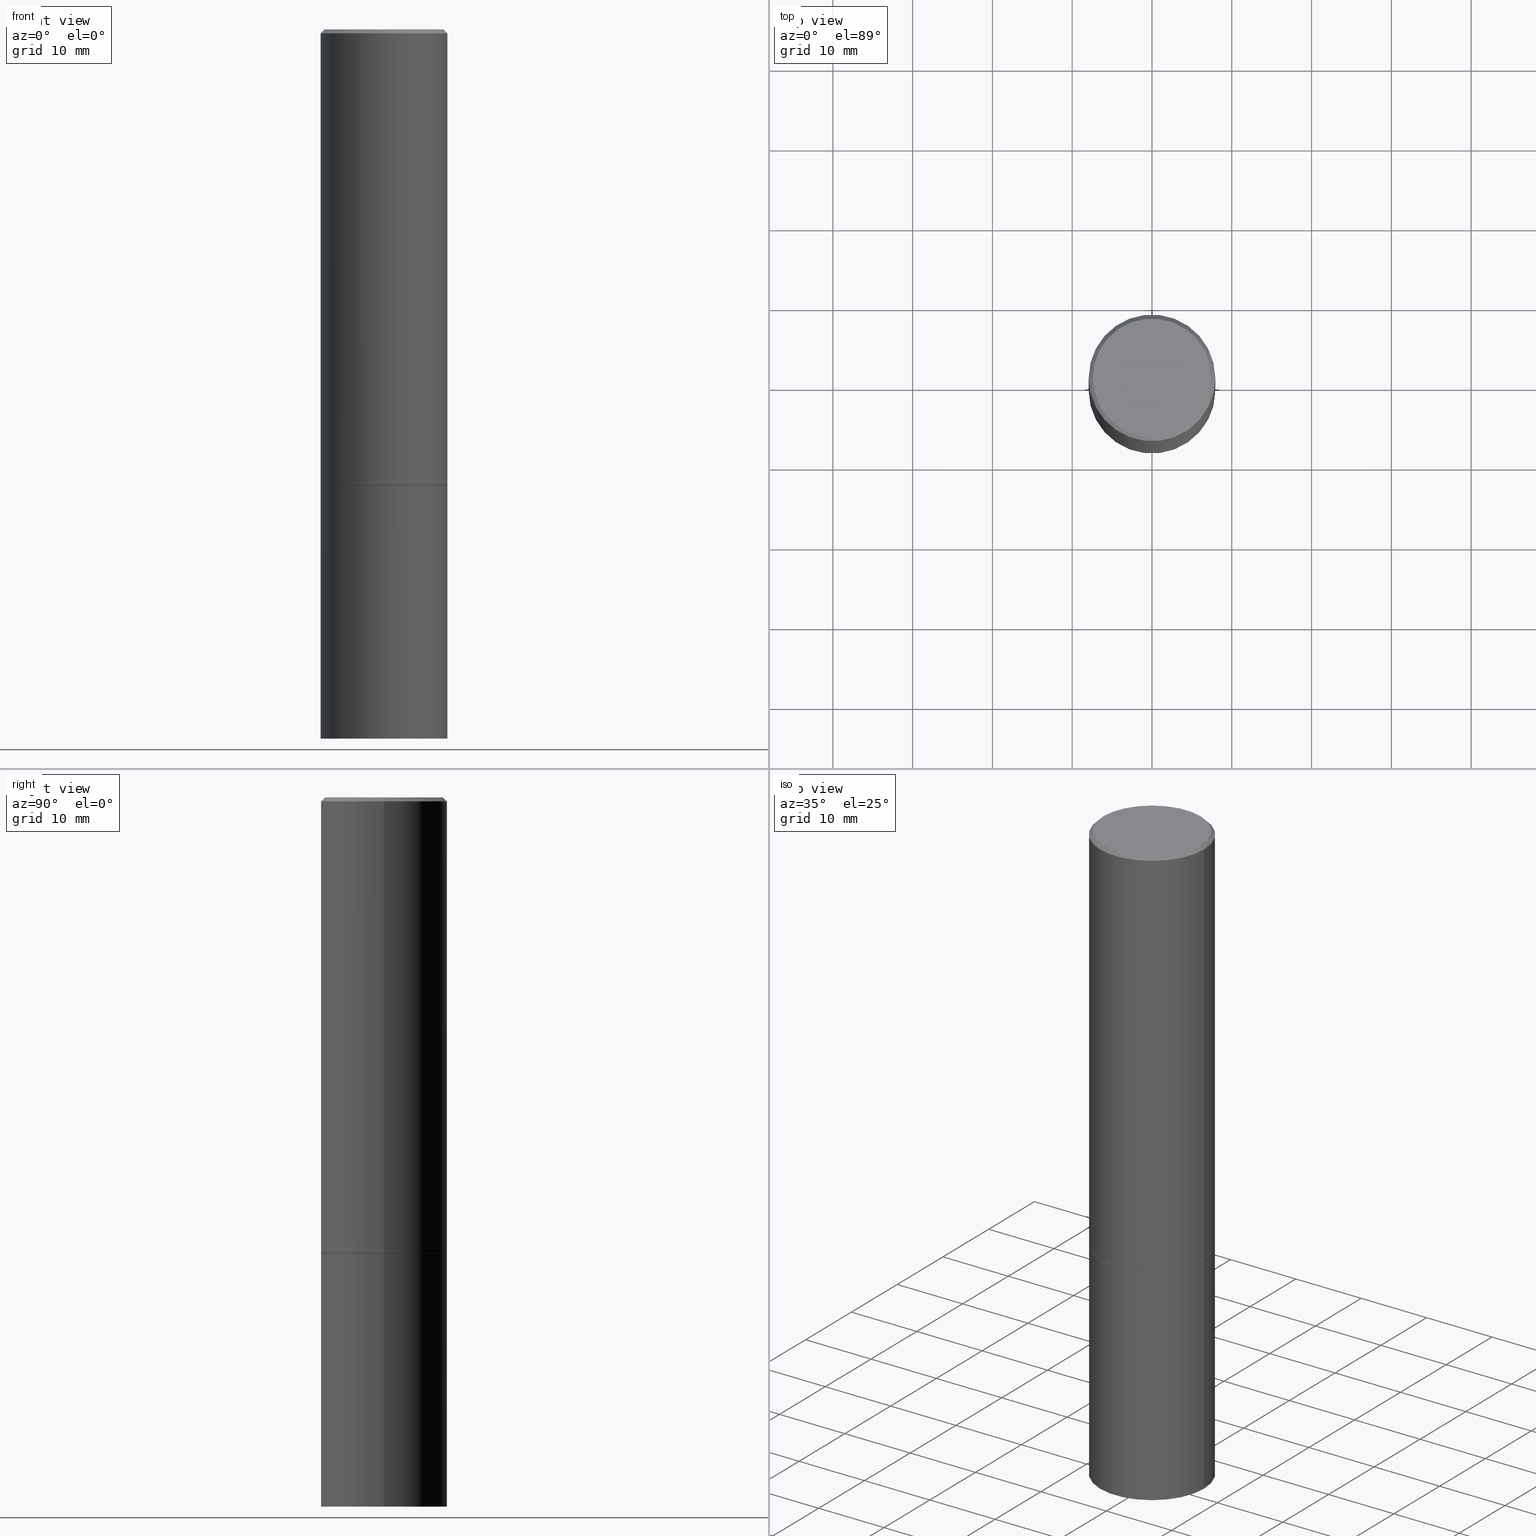
[diagram: canonical four-view strip — front | top / right | iso, engineering-drawing reading convention]
A machine part, canonical four-view strip (front | top / right | iso — engineering-drawing reading convention). The complete STEP part file that produces these views, byte-faithful:
ISO-10303-21;
HEADER;
FILE_DESCRIPTION (( 'STEP AP203' ),
    '1' );
FILE_NAME ('35313.STEP',
    '2024-02-27T18:39:55',
    ( '' ),
    ( '' ),
    'SwSTEP 2.0',
    'SolidWorks 2023',
    '' );
FILE_SCHEMA (( 'CONFIG_CONTROL_DESIGN' ));
ENDSEC;

DATA;
#1 = DESIGN_CONTEXT ( 'detailed design', #98, 'design' ) ;
#2 = DIRECTION ( 'NONE',  ( -1.000000000000000000, 6.982962677686265922E-15, -4.876176775795935793E-29 ) ) ;
#3 = DIRECTION ( 'NONE',  ( 2.438088387897960049E-29, -3.491481338843145188E-15, -1.000000000000000000 ) ) ;
#4 = AXIS2_PLACEMENT_3D ( 'NONE', #120, #284, #31 ) ;
#5 = PERSON_AND_ORGANIZATION ( #75, #242 ) ;
#6 = CARTESIAN_POINT ( 'NONE',  ( 0.3114999999999999991, -1.003102588649635078E-14, -2.250000000000000000 ) ) ;
#7 = LINE ( 'NONE', #247, #264 ) ;
#8 = EDGE_CURVE ( 'NONE', #302, #254, #138, .T. ) ;
#9 = AXIS2_PLACEMENT_3D ( 'NONE', #94, #308, #363 ) ;
#10 = ORIENTED_EDGE ( 'NONE', *, *, #39, .T. ) ;
#11 = ORIENTED_EDGE ( 'NONE', *, *, #285, .T. ) ;
#12 = ORIENTED_EDGE ( 'NONE', *, *, #36, .T. ) ;
#13 = APPROVAL_PERSON_ORGANIZATION ( #258, #55, #365 ) ;
#14 = ORIENTED_EDGE ( 'NONE', *, *, #39, .F. ) ;
#15 = ORIENTED_EDGE ( 'NONE', *, *, #102, .T. ) ;
#16 = DIRECTION ( 'NONE',  ( 1.000000000000000000, -6.982962677686269077E-15, 0.000000000000000000 ) ) ;
#17 = CIRCLE ( 'NONE', #48, 0.3125000000000000000 ) ;
#18 = EDGE_LOOP ( 'NONE', ( #190, #14 ) ) ;
#19 = DIRECTION ( 'NONE',  ( 1.000000000000000000, 0.000000000000000000, 0.000000000000000000 ) ) ;
#20 = DIRECTION ( 'NONE',  ( -2.445468806185136597E-29, 3.491481338843145583E-15, 1.000000000000000000 ) ) ;
#21 = DIRECTION ( 'NONE',  ( -2.438088387897960049E-29, 3.491481338843145188E-15, 1.000000000000000000 ) ) ;
#22 = ADVANCED_FACE ( 'NONE', ( #119 ), #143, .T. ) ;
#23 = APPROVAL_STATUS ( 'not_yet_approved' ) ;
#24 = APPROVAL_ROLE ( '' ) ;
#25 = CIRCLE ( 'NONE', #166, 0.3114999999999999991 ) ;
#26 = ORIENTED_EDGE ( 'NONE', *, *, #134, .F. ) ;
#27 = EDGE_CURVE ( 'NONE', #254, #223, #178, .T. ) ;
#28 = PERSON_AND_ORGANIZATION ( #75, #242 ) ;
#29 = DIRECTION ( 'NONE',  ( 2.438088387897960049E-29, -3.491481338843145188E-15, -1.000000000000000000 ) ) ;
#30 = ADVANCED_BREP_SHAPE_REPRESENTATION ( '35313', ( #37, #42, #316 ), #304 ) ;
#31 = DIRECTION ( 'NONE',  ( -1.000000000000000000, 6.982962677686265922E-15, -4.876176775795935793E-29 ) ) ;
#32 = CARTESIAN_POINT ( 'NONE',  ( 5.502304813916557343E-29, -7.855833012397078448E-15, -2.250000000000000000 ) ) ;
#33 = CARTESIAN_POINT ( 'NONE',  ( -0.3124999999999997224, 2.112346210000093471E-15, -0.02000000000000007674 ) ) ;
#34 = ADVANCED_FACE ( 'NONE', ( #306 ), #339, .T. ) ;
#35 = CONICAL_SURFACE ( 'NONE', #291, 0.3124999999999997224, 0.7853981633974471688 ) ;
#36 = EDGE_CURVE ( 'NONE', #286, #223, #86, .T. ) ;
#37 = MANIFOLD_SOLID_BREP ( 'Body-Move/Copy2[1]', #106 ) ;
#38 = LINE ( 'NONE', #124, #346 ) ;
#39 = EDGE_CURVE ( 'NONE', #71, #72, #327, .T. ) ;
#40 = AXIS2_PLACEMENT_3D ( 'NONE', #331, #193, #170 ) ;
#41 = EDGE_CURVE ( 'NONE', #191, #205, #17, .T. ) ;
#42 = MANIFOLD_SOLID_BREP ( 'Body-Move/Copy2[2]', #90 ) ;
#43 = EDGE_LOOP ( 'NONE', ( #253, #15 ) ) ;
#44 = ORIENTED_EDGE ( 'NONE', *, *, #274, .T. ) ;
#45 = ORIENTED_EDGE ( 'NONE', *, *, #97, .T. ) ;
#46 = AXIS2_PLACEMENT_3D ( 'NONE', #288, #21, #263 ) ;
#47 = DIRECTION ( 'NONE',  ( 1.000000000000000000, -6.982962677686269077E-15, 0.000000000000000000 ) ) ;
#48 = AXIS2_PLACEMENT_3D ( 'NONE', #140, #146, #332 ) ;
#49 = DIRECTION ( 'NONE',  ( 1.000000000000000000, -6.982962677686266711E-15, 4.876176775795936353E-29 ) ) ;
#50 = LOCAL_TIME ( 13, 39, 55.00000000000000000, #195 ) ;
#51 = DIRECTION ( 'NONE',  ( 1.000000000000000000, -6.982962677686265133E-15, 0.000000000000000000 ) ) ;
#52 = COORDINATED_UNIVERSAL_TIME_OFFSET ( 5, 0, .BEHIND. ) ;
#53 = FACE_OUTER_BOUND ( 'NONE', #132, .T. ) ;
#54 = DIRECTION ( 'NONE',  ( -2.445468806185136597E-29, 3.491481338843145583E-15, 1.000000000000000000 ) ) ;
#55 = APPROVAL ( #282, 'UNSPECIFIED' ) ;
#56 = PRODUCT ( '35313', '35313', '', ( #115 ) ) ;
#57 = EDGE_LOOP ( 'NONE', ( #321, #324, #347, #238 ) ) ;
#58 = DIRECTION ( 'NONE',  ( -2.445468806185136597E-29, 3.491481338843145583E-15, 1.000000000000000000 ) ) ;
#59 = APPLICATION_CONTEXT ( 'configuration controlled 3d designs of mechanical parts and assemblies' ) ;
#60 = DIRECTION ( 'NONE',  ( -2.445468806185136597E-29, 3.491481338843145583E-15, 1.000000000000000000 ) ) ;
#61 = EDGE_CURVE ( 'NONE', #286, #302, #241, .T. ) ;
#62 = CARTESIAN_POINT ( 'NONE',  ( 0.3124999999999997224, -2.213735251080464939E-15, -0.02000000000000007674 ) ) ;
#63 = DIRECTION ( 'NONE',  ( -2.445468806185136597E-29, 3.491481338843145583E-15, 1.000000000000000000 ) ) ;
#64 = DATE_TIME_ROLE ( 'creation_date' ) ;
#65 = CARTESIAN_POINT ( 'NONE',  ( 2.042516583223230567E-15, 0.2924999999999997047, -1.021258291611619228E-15 ) ) ;
#66 = CARTESIAN_POINT ( 'NONE',  ( 0.3125000000000000000, -1.003800884917403522E-14, -2.249999999999999556 ) ) ;
#67 = CONICAL_SURFACE ( 'NONE', #40, 0.3114999999999999991, 0.7853981633972775267 ) ;
#68 = FACE_OUTER_BOUND ( 'NONE', #103, .T. ) ;
#69 = EDGE_CURVE ( 'NONE', #71, #205, #200, .T. ) ;
#70 = CC_DESIGN_APPROVAL ( #212, ( #104 ) ) ;
#71 = VERTEX_POINT ( 'NONE', #114 ) ;
#72 = VERTEX_POINT ( 'NONE', #313 ) ;
#73 = UNCERTAINTY_MEASURE_WITH_UNIT (LENGTH_MEASURE( 1.000000000000000082E-05 ), #340, 'distance_accuracy_value', 'NONE');
#74 = EDGE_LOOP ( 'NONE', ( #277, #10, #250, #305 ) ) ;
#75 = PERSON ( 'UNSPECIFIED', 'UNSPECIFIED', 'UNSPECIFIED', ('UNSPECIFIED'), ('UNSPECIFIED'), ('UNSPECIFIED') ) ;
#76 = VECTOR ( 'NONE', #318, 39.37007874015748143 ) ;
#77 = FACE_OUTER_BOUND ( 'NONE', #221, .T. ) ;
#78 = CARTESIAN_POINT ( 'NONE',  ( -0.3125000000000000000, -1.740639529667233725E-15, -2.248999999999999666 ) ) ;
#79 = CARTESIAN_POINT ( 'NONE',  ( 5.499859345110371740E-29, -7.852341531058233864E-15, -2.248999999999999666 ) ) ;
#80 = PERSON_AND_ORGANIZATION_ROLE ( 'creator' ) ;
#81 = DIRECTION ( 'NONE',  ( -2.445468806185136597E-29, 3.491481338843145583E-15, 1.000000000000000000 ) ) ;
#82 = CC_DESIGN_PERSON_AND_ORGANIZATION_ASSIGNMENT ( #139, #80, ( #272 ) ) ;
#83 = DIRECTION ( 'NONE',  ( -2.445468806185136597E-29, 3.491481338843145583E-15, 1.000000000000000000 ) ) ;
#84 = APPROVAL_DATE_TIME ( #169, #55 ) ;
#85 = DIMENSIONAL_EXPONENTS ( 1.000000000000000000, 0.000000000000000000, 0.000000000000000000, 0.000000000000000000, 0.000000000000000000, 0.000000000000000000, 0.000000000000000000 ) ;
#86 = LINE ( 'NONE', #361, #300 ) ;
#87 = DATE_AND_TIME ( #144, #297 ) ;
#88 = CARTESIAN_POINT ( 'NONE',  ( 0.3124999999999998890, -2.182175836776957558E-15, 1.523805242436229235E-29 ) ) ;
#89 = DATE_AND_TIME ( #337, #50 ) ;
#90 = CLOSED_SHELL ( 'NONE', ( #22, #34, #95, #216, #245, #334, #155, #186 ) ) ;
#91 = FACE_OUTER_BOUND ( 'NONE', #192, .T. ) ;
#92 = CC_DESIGN_PERSON_AND_ORGANIZATION_ASSIGNMENT ( #198, #172, ( #56 ) ) ;
#93 = CARTESIAN_POINT ( 'NONE',  ( 4.890937612370292426E-31, -6.982962677686317493E-17, -0.02000000000000007674 ) ) ;
#94 = CARTESIAN_POINT ( 'NONE',  ( 4.890937612370292426E-31, -6.982962677686317493E-17, -0.02000000000000007674 ) ) ;
#95 = ADVANCED_FACE ( 'NONE', ( #231 ), #35, .T. ) ;
#96 = FACE_OUTER_BOUND ( 'NONE', #18, .T. ) ;
#97 = EDGE_CURVE ( 'NONE', #72, #71, #345, .T. ) ;
#98 = APPLICATION_CONTEXT ( 'configuration controlled 3d designs of mechanical parts and assemblies' ) ;
#99 = AXIS2_PLACEMENT_3D ( 'NONE', #142, #54, #135 ) ;
#100 = VERTEX_POINT ( 'NONE', #257 ) ;
#101 = ORIENTED_EDGE ( 'NONE', *, *, #211, .T. ) ;
#102 = EDGE_CURVE ( 'NONE', #205, #191, #323, .T. ) ;
#103 = EDGE_LOOP ( 'NONE', ( #101, #279 ) ) ;
#104 = PRODUCT_DEFINITION ( 'UNKNOWN', '', #272, #1 ) ;
#105 = ORIENTED_EDGE ( 'NONE', *, *, #164, .F. ) ;
#106 = CLOSED_SHELL ( 'NONE', ( #294, #237, #333, #159 ) ) ;
#107 = CARTESIAN_POINT ( 'NONE',  ( 5.502304813916557343E-29, -7.855833012397078448E-15, -2.250000000000000000 ) ) ;
#108 = CALENDAR_DATE ( 2024, 27, 2 ) ;
#109 = CARTESIAN_POINT ( 'NONE',  ( 0.2924999999999997047, -2.110215457714317959E-15, 1.452077414963940261E-29 ) ) ;
#110 = DIRECTION ( 'NONE',  ( 1.000000000000000000, -6.982962677686266711E-15, 4.876176775795935232E-29 ) ) ;
#111 = APPROVAL_DATE_TIME ( #362, #153 ) ;
#112 = CARTESIAN_POINT ( 'NONE',  ( 0.3125000000000000000, -1.003451736783519063E-14, -2.248999999999999666 ) ) ;
#113 = CC_DESIGN_PERSON_AND_ORGANIZATION_ASSIGNMENT ( #292, #147, ( #104 ) ) ;
#114 = CARTESIAN_POINT ( 'NONE',  ( -0.3125000000000000000, -7.817562799923730025E-15, -3.500000000000000000 ) ) ;
#115 = MECHANICAL_CONTEXT ( 'NONE', #59, 'mechanical' ) ;
#116 = VECTOR ( 'NONE', #311, 39.37007874015748143 ) ;
#117 = ORIENTED_EDGE ( 'NONE', *, *, #69, .T. ) ;
#118 = FACE_OUTER_BOUND ( 'NONE', #43, .T. ) ;
#119 = FACE_OUTER_BOUND ( 'NONE', #350, .T. ) ;
#120 = CARTESIAN_POINT ( 'NONE',  ( 2.182175836777013173E-15, 0.3124999999999921729, -2.250000000000000888 ) ) ;
#121 = DIRECTION ( 'NONE',  ( -2.445468806185136597E-29, 3.491481338843145583E-15, 1.000000000000000000 ) ) ;
#122 = LOCAL_TIME ( 13, 39, 55.00000000000000000, #203 ) ;
#123 = CARTESIAN_POINT ( 'NONE',  ( 5.499859345110371740E-29, -7.852341531058233864E-15, -2.248999999999999666 ) ) ;
#124 = CARTESIAN_POINT ( 'NONE',  ( 0.3114999999999999991, -1.003102588649635078E-14, -2.250000000000000000 ) ) ;
#125 = CC_DESIGN_PERSON_AND_ORGANIZATION_ASSIGNMENT ( #167, #307, ( #272 ) ) ;
#126 = PLANE ( 'NONE',  #127 ) ;
#127 = AXIS2_PLACEMENT_3D ( 'NONE', #65, #29, #295 ) ;
#128 = ORIENTED_EDGE ( 'NONE', *, *, #41, .F. ) ;
#129 = ORIENTED_EDGE ( 'NONE', *, *, #27, .T. ) ;
#130 = AXIS2_PLACEMENT_3D ( 'NONE', #358, #81, #49 ) ;
#131 = ORIENTED_EDGE ( 'NONE', *, *, #218, .F. ) ;
#132 = EDGE_LOOP ( 'NONE', ( #45, #117, #128, #251 ) ) ;
#133 = ORIENTED_EDGE ( 'NONE', *, *, #134, .T. ) ;
#134 = EDGE_CURVE ( 'NONE', #194, #158, #25, .T. ) ;
#135 = DIRECTION ( 'NONE',  ( 1.000000000000000000, -6.982962677686269077E-15, 0.000000000000000000 ) ) ;
#136 = AXIS2_PLACEMENT_3D ( 'NONE', #173, #20, #16 ) ;
#137 = PERSON_AND_ORGANIZATION_ROLE ( 'classification_officer' ) ;
#138 = LINE ( 'NONE', #88, #252 ) ;
#139 = PERSON_AND_ORGANIZATION ( #75, #242 ) ;
#140 = CARTESIAN_POINT ( 'NONE',  ( 5.502304813916556222E-29, -7.855833012397076871E-15, -2.249999999999999556 ) ) ;
#141 = DIRECTION ( 'NONE',  ( 0.000000000000000000, 0.000000000000000000, 1.000000000000000000 ) ) ;
#142 = CARTESIAN_POINT ( 'NONE',  ( 8.559140821647976968E-29, -1.222018468595100934E-14, -3.500000000000000000 ) ) ;
#143 = CONICAL_SURFACE ( 'NONE', #352, 0.3114999999999999991, 0.7853981633972775267 ) ;
#144 = CALENDAR_DATE ( 2024, 27, 2 ) ;
#145 = AXIS2_PLACEMENT_3D ( 'NONE', #201, #58, #156 ) ;
#146 = DIRECTION ( 'NONE',  ( -2.445468806185136597E-29, 3.491481338843145583E-15, 1.000000000000000000 ) ) ;
#147 = PERSON_AND_ORGANIZATION_ROLE ( 'creator' ) ;
#148 = CARTESIAN_POINT ( 'NONE',  ( -0.3125000000000000000, -7.817562799923730025E-15, -2.249999999999999556 ) ) ;
#149 = LINE ( 'NONE', #62, #116 ) ;
#150 = DIRECTION ( 'NONE',  ( -2.445468806185136597E-29, 3.491481338843145583E-15, 1.000000000000000000 ) ) ;
#151 = CONICAL_SURFACE ( 'NONE', #189, 0.3124999999999997224, 0.7853981633974471688 ) ;
#152 = DIRECTION ( 'NONE',  ( 1.000000000000000000, -6.982962677686266711E-15, 4.876176775795936353E-29 ) ) ;
#153 = APPROVAL ( #23, 'UNSPECIFIED' ) ;
#154 = DIRECTION ( 'NONE',  ( 1.000000000000000000, -6.982962677686269077E-15, 0.000000000000000000 ) ) ;
#155 = ADVANCED_FACE ( 'NONE', ( #77 ), #312, .F. ) ;
#156 = DIRECTION ( 'NONE',  ( 1.000000000000000000, -6.982962677686266711E-15, 4.876176775795936353E-29 ) ) ;
#157 = CC_DESIGN_SECURITY_CLASSIFICATION ( #179, ( #272 ) ) ;
#158 = VERTEX_POINT ( 'NONE', #298 ) ;
#159 = ADVANCED_FACE ( 'NONE', ( #182 ), #287, .T. ) ;
#160 = ORIENTED_EDGE ( 'NONE', *, *, #244, .F. ) ;
#161 = AXIS2_PLACEMENT_3D ( 'NONE', #296, #3, #2 ) ;
#162 = CC_DESIGN_PERSON_AND_ORGANIZATION_ASSIGNMENT ( #268, #137, ( #179 ) ) ;
#163 = ORIENTED_EDGE ( 'NONE', *, *, #199, .F. ) ;
#164 = EDGE_CURVE ( 'NONE', #158, #286, #210, .T. ) ;
#165 = CARTESIAN_POINT ( 'NONE',  ( 4.890937612370292426E-31, -6.982962677686317493E-17, -0.02000000000000007674 ) ) ;
#166 = AXIS2_PLACEMENT_3D ( 'NONE', #107, #225, #330 ) ;
#167 = PERSON_AND_ORGANIZATION ( #75, #242 ) ;
#168 = ORIENTED_EDGE ( 'NONE', *, *, #222, .F. ) ;
#169 = DATE_AND_TIME ( #206, #278 ) ;
#170 = DIRECTION ( 'NONE',  ( 1.000000000000000000, -6.982962677686269077E-15, 0.000000000000000000 ) ) ;
#171 = DIRECTION ( 'NONE',  ( -2.445468806185136877E-29, 3.491481338843145188E-15, 1.000000000000000000 ) ) ;
#172 = PERSON_AND_ORGANIZATION_ROLE ( 'design_owner' ) ;
#173 = CARTESIAN_POINT ( 'NONE',  ( 8.559140821647976968E-29, -1.222018468595100934E-14, -3.500000000000000000 ) ) ;
#174 = APPROVAL_DATE_TIME ( #87, #212 ) ;
#175 = CIRCLE ( 'NONE', #309, 0.3125000000000000000 ) ;
#176 = DIRECTION ( 'NONE',  ( 1.000000000000000000, -6.982962677686266711E-15, 4.876176775795935232E-29 ) ) ;
#177 = PLANE ( 'NONE',  #161 ) ;
#178 = CIRCLE ( 'NONE', #232, 0.3124999999999997224 ) ;
#179 = SECURITY_CLASSIFICATION ( '', '', #239 ) ;
#180 = CARTESIAN_POINT ( 'NONE',  ( 0.000000000000000000, 0.000000000000000000, 0.000000000000000000 ) ) ;
#181 = DIRECTION ( 'NONE',  ( -2.445468806185136597E-29, 3.491481338843145583E-15, 1.000000000000000000 ) ) ;
#182 = FACE_OUTER_BOUND ( 'NONE', #74, .T. ) ;
#183 = AXIS2_PLACEMENT_3D ( 'NONE', #364, #357, #110 ) ;
#184 = AXIS2_PLACEMENT_3D ( 'NONE', #180, #150, #342 ) ;
#185 = ORIENTED_EDGE ( 'NONE', *, *, #211, .F. ) ;
#186 = ADVANCED_FACE ( 'NONE', ( #68 ), #126, .F. ) ;
#187 = CC_DESIGN_DATE_AND_TIME_ASSIGNMENT ( #293, #64, ( #104 ) ) ;
#188 = EDGE_LOOP ( 'NONE', ( #44, #12, #276, #349 ) ) ;
#189 = AXIS2_PLACEMENT_3D ( 'NONE', #93, #209, #213 ) ;
#190 = ORIENTED_EDGE ( 'NONE', *, *, #97, .F. ) ;
#191 = VERTEX_POINT ( 'NONE', #66 ) ;
#192 = EDGE_LOOP ( 'NONE', ( #303, #185, #229, #11 ) ) ;
#193 = DIRECTION ( 'NONE',  ( -2.445468806185136597E-29, 3.491481338843145583E-15, 1.000000000000000000 ) ) ;
#194 = VERTEX_POINT ( 'NONE', #6 ) ;
#195 = COORDINATED_UNIVERSAL_TIME_OFFSET ( 5, 0, .BEHIND. ) ;
#196 =( NAMED_UNIT ( * ) SI_UNIT ( $, .STERADIAN. ) SOLID_ANGLE_UNIT ( ) );
#197 = DIRECTION ( 'NONE',  ( 1.000000000000000000, -6.982962677686266711E-15, 0.000000000000000000 ) ) ;
#198 = PERSON_AND_ORGANIZATION ( #75, #242 ) ;
#199 = EDGE_CURVE ( 'NONE', #158, #194, #319, .T. ) ;
#200 = LINE ( 'NONE', #261, #219 ) ;
#201 = CARTESIAN_POINT ( 'NONE',  ( 0.000000000000000000, 0.000000000000000000, 0.000000000000000000 ) ) ;
#202 = CC_DESIGN_DATE_AND_TIME_ASSIGNMENT ( #89, #234, ( #179 ) ) ;
#203 = COORDINATED_UNIVERSAL_TIME_OFFSET ( 5, 0, .BEHIND. ) ;
#204 = CARTESIAN_POINT ( 'NONE',  ( 0.000000000000000000, 0.000000000000000000, 0.000000000000000000 ) ) ;
#205 = VERTEX_POINT ( 'NONE', #148 ) ;
#206 = CALENDAR_DATE ( 2024, 27, 2 ) ;
#207 = COORDINATED_UNIVERSAL_TIME_OFFSET ( 5, 0, .BEHIND. ) ;
#208 = AXIS2_PLACEMENT_3D ( 'NONE', #317, #63, #176 ) ;
#209 = DIRECTION ( 'NONE',  ( 2.445468806185136597E-29, -3.491481338843145583E-15, -1.000000000000000000 ) ) ;
#210 = LINE ( 'NONE', #320, #76 ) ;
#211 = EDGE_CURVE ( 'NONE', #100, #351, #256, .T. ) ;
#212 = APPROVAL ( #289, 'UNSPECIFIED' ) ;
#213 = DIRECTION ( 'NONE',  ( -1.000000000000000000, 6.982962677686266711E-15, 0.000000000000000000 ) ) ;
#214 = AXIS2_PLACEMENT_3D ( 'NONE', #267, #83, #47 ) ;
#215 = CARTESIAN_POINT ( 'NONE',  ( 0.000000000000000000, 0.000000000000000000, 0.000000000000000000 ) ) ;
#216 = ADVANCED_FACE ( 'NONE', ( #91 ), #151, .T. ) ;
#217 = ORIENTED_EDGE ( 'NONE', *, *, #61, .F. ) ;
#218 = EDGE_CURVE ( 'NONE', #100, #223, #299, .T. ) ;
#219 = VECTOR ( 'NONE', #359, 39.37007874015748143 ) ;
#220 = CC_DESIGN_APPROVAL ( #153, ( #272 ) ) ;
#221 = EDGE_LOOP ( 'NONE', ( #26, #163 ) ) ;
#222 = EDGE_CURVE ( 'NONE', #194, #302, #38, .T. ) ;
#223 = VERTEX_POINT ( 'NONE', #270 ) ;
#224 = EDGE_LOOP ( 'NONE', ( #105, #235, #255, #217 ) ) ;
#225 = DIRECTION ( 'NONE',  ( -2.445468806185136597E-29, 3.491481338843145583E-15, 1.000000000000000000 ) ) ;
#226 = EDGE_CURVE ( 'NONE', #72, #191, #7, .T. ) ;
#227 = LENGTH_MEASURE_WITH_UNIT ( LENGTH_MEASURE( 0.02539999999999999897 ), #230 );
#228 = PRODUCT_DEFINITION_SHAPE ( 'NONE', 'NONE',  #104 ) ;
#229 = ORIENTED_EDGE ( 'NONE', *, *, #218, .T. ) ;
#230 =( LENGTH_UNIT ( ) NAMED_UNIT ( * ) SI_UNIT ( $, .METRE. ) );
#231 = FACE_OUTER_BOUND ( 'NONE', #280, .T. ) ;
#232 = AXIS2_PLACEMENT_3D ( 'NONE', #165, #310, #197 ) ;
#233 = VECTOR ( 'NONE', #344, 39.37007874015748143 ) ;
#234 = DATE_TIME_ROLE ( 'classification_date' ) ;
#235 = ORIENTED_EDGE ( 'NONE', *, *, #199, .T. ) ;
#236 = FACE_OUTER_BOUND ( 'NONE', #224, .T. ) ;
#237 = ADVANCED_FACE ( 'NONE', ( #96 ), #177, .T. ) ;
#238 = ORIENTED_EDGE ( 'NONE', *, *, #285, .F. ) ;
#239 = SECURITY_CLASSIFICATION_LEVEL ( 'unclassified' ) ;
#240 = DIRECTION ( 'NONE',  ( -2.445468806185136877E-29, 3.491481338843145188E-15, 1.000000000000000000 ) ) ;
#241 = CIRCLE ( 'NONE', #322, 0.3125000000000000000 ) ;
#242 = ORGANIZATION ( 'UNSPECIFIED', 'UNSPECIFIED', '' ) ;
#243 = DIRECTION ( 'NONE',  ( -2.445468806185136597E-29, 3.491481338843145583E-15, 1.000000000000000000 ) ) ;
#244 = EDGE_CURVE ( 'NONE', #351, #100, #275, .T. ) ;
#245 = ADVANCED_FACE ( 'NONE', ( #341 ), #271, .T. ) ;
#246 = DIRECTION ( 'NONE',  ( 0.7071067811864267805, -2.468850131080992517E-15, 0.7071067811866682540 ) ) ;
#247 = CARTESIAN_POINT ( 'NONE',  ( 0.3125000000000000000, -2.182175836776958347E-15, 1.523805242436230075E-29 ) ) ;
#248 = AXIS2_PLACEMENT_3D ( 'NONE', #32, #181, #154 ) ;
#249 = PRODUCT_RELATED_PRODUCT_CATEGORY ( 'detail', '', ( #56 ) ) ;
#250 = ORIENTED_EDGE ( 'NONE', *, *, #226, .T. ) ;
#251 = ORIENTED_EDGE ( 'NONE', *, *, #226, .F. ) ;
#252 = VECTOR ( 'NONE', #281, 39.37007874015748143 ) ;
#253 = ORIENTED_EDGE ( 'NONE', *, *, #41, .T. ) ;
#254 = VERTEX_POINT ( 'NONE', #343 ) ;
#255 = ORIENTED_EDGE ( 'NONE', *, *, #222, .T. ) ;
#256 = CIRCLE ( 'NONE', #184, 0.2924999999999997047 ) ;
#257 = CARTESIAN_POINT ( 'NONE',  ( -0.2924999999999997047, 2.077431396611662216E-15, -1.440630921208798820E-29 ) ) ;
#258 = PERSON_AND_ORGANIZATION ( #75, #242 ) ;
#259 = CARTESIAN_POINT ( 'NONE',  ( 5.502304813916557343E-29, -7.855833012397078448E-15, -2.250000000000000000 ) ) ;
#260 =( NAMED_UNIT ( * ) PLANE_ANGLE_UNIT ( ) SI_UNIT ( $, .RADIAN. ) );
#261 = CARTESIAN_POINT ( 'NONE',  ( -0.3125000000000000000, 2.220446049250313081E-15, -1.537167215704658232E-29 ) ) ;
#262 = PLANE ( 'NONE',  #4 ) ;
#263 = DIRECTION ( 'NONE',  ( 1.000000000000000000, -6.982962677686265922E-15, 4.876176775795935793E-29 ) ) ;
#264 = VECTOR ( 'NONE', #240, 39.37007874015748143 ) ;
#265 = APPROVAL_ROLE ( '' ) ;
#266 = APPLICATION_PROTOCOL_DEFINITION ( 'international standard', 'config_control_design', 1994, #98 ) ;
#267 = CARTESIAN_POINT ( 'NONE',  ( 5.502304813916556222E-29, -7.855833012397076871E-15, -2.249999999999999556 ) ) ;
#268 = PERSON_AND_ORGANIZATION ( #75, #242 ) ;
#269 = COORDINATED_UNIVERSAL_TIME_OFFSET ( 5, 0, .BEHIND. ) ;
#270 = CARTESIAN_POINT ( 'NONE',  ( -0.3124999999999997224, 2.112346210000093471E-15, -0.02000000000000007674 ) ) ;
#271 = CYLINDRICAL_SURFACE ( 'NONE', #208, 0.3124999999999998890 ) ;
#272 = PRODUCT_DEFINITION_FORMATION_WITH_SPECIFIED_SOURCE ( 'ANY', '', #56, .NOT_KNOWN. ) ;
#273 = DIRECTION ( 'NONE',  ( 1.000000000000000000, -6.982962677686265133E-15, 0.000000000000000000 ) ) ;
#274 = EDGE_CURVE ( 'NONE', #302, #286, #175, .T. ) ;
#275 = CIRCLE ( 'NONE', #328, 0.2924999999999997047 ) ;
#276 = ORIENTED_EDGE ( 'NONE', *, *, #27, .F. ) ;
#277 = ORIENTED_EDGE ( 'NONE', *, *, #69, .F. ) ;
#278 = LOCAL_TIME ( 13, 39, 55.00000000000000000, #52 ) ;
#279 = ORIENTED_EDGE ( 'NONE', *, *, #244, .T. ) ;
#280 = EDGE_LOOP ( 'NONE', ( #160, #326, #129, #131 ) ) ;
#281 = DIRECTION ( 'NONE',  ( -2.445468806185136877E-29, 3.491481338843145188E-15, 1.000000000000000000 ) ) ;
#282 = APPROVAL_STATUS ( 'not_yet_approved' ) ;
#283 = LOCAL_TIME ( 13, 39, 55.00000000000000000, #269 ) ;
#284 = DIRECTION ( 'NONE',  ( 2.438088387897960049E-29, -3.491481338843145188E-15, -1.000000000000000000 ) ) ;
#285 = EDGE_CURVE ( 'NONE', #223, #254, #348, .T. ) ;
#286 = VERTEX_POINT ( 'NONE', #78 ) ;
#287 = CYLINDRICAL_SURFACE ( 'NONE', #145, 0.3125000000000000000 ) ;
#288 = CARTESIAN_POINT ( 'NONE',  ( 5.502304813916556222E-29, -7.855833012397076871E-15, -2.249999999999999556 ) ) ;
#289 = APPROVAL_STATUS ( 'not_yet_approved' ) ;
#290 = DIRECTION ( 'NONE',  ( 2.445468806185136597E-29, -3.491481338843145583E-15, -1.000000000000000000 ) ) ;
#291 = AXIS2_PLACEMENT_3D ( 'NONE', #315, #290, #336 ) ;
#292 = PERSON_AND_ORGANIZATION ( #75, #242 ) ;
#293 = DATE_AND_TIME ( #366, #283 ) ;
#294 = ADVANCED_FACE ( 'NONE', ( #53 ), #356, .T. ) ;
#295 = DIRECTION ( 'NONE',  ( -1.000000000000000000, 6.982962677686265922E-15, -4.876176775795935793E-29 ) ) ;
#296 = CARTESIAN_POINT ( 'NONE',  ( 2.182175836777043938E-15, 0.3124999999999877875, -3.500000000000000888 ) ) ;
#297 = LOCAL_TIME ( 13, 39, 55.00000000000000000, #207 ) ;
#298 = CARTESIAN_POINT ( 'NONE',  ( -0.3114999999999999991, -5.637193936156143185E-15, -2.250000000000000000 ) ) ;
#299 = LINE ( 'NONE', #33, #233 ) ;
#300 = VECTOR ( 'NONE', #171, 39.37007874015748143 ) ;
#301 = ORIENTED_EDGE ( 'NONE', *, *, #274, .F. ) ;
#302 = VERTEX_POINT ( 'NONE', #112 ) ;
#303 = ORIENTED_EDGE ( 'NONE', *, *, #325, .F. ) ;
#304 =( GEOMETRIC_REPRESENTATION_CONTEXT ( 3 ) GLOBAL_UNCERTAINTY_ASSIGNED_CONTEXT ( ( #73 ) ) GLOBAL_UNIT_ASSIGNED_CONTEXT ( ( #340, #260, #196 ) ) REPRESENTATION_CONTEXT ( 'NONE', 'WORKASPACE' ) );
#305 = ORIENTED_EDGE ( 'NONE', *, *, #102, .F. ) ;
#306 = FACE_OUTER_BOUND ( 'NONE', #188, .T. ) ;
#307 = PERSON_AND_ORGANIZATION_ROLE ( 'design_supplier' ) ;
#308 = DIRECTION ( 'NONE',  ( -2.445468806185136597E-29, 3.491481338843145583E-15, 1.000000000000000000 ) ) ;
#309 = AXIS2_PLACEMENT_3D ( 'NONE', #123, #243, #273 ) ;
#310 = DIRECTION ( 'NONE',  ( -2.445468806185136597E-29, 3.491481338843145583E-15, 1.000000000000000000 ) ) ;
#311 = DIRECTION ( 'NONE',  ( 0.7071067811865466846, -7.319954787623252890E-15, -0.7071067811865483499 ) ) ;
#312 = PLANE ( 'NONE',  #46 ) ;
#313 = CARTESIAN_POINT ( 'NONE',  ( 0.3125000000000000000, -1.440236052272796769E-14, -3.500000000000000000 ) ) ;
#314 = APPLICATION_PROTOCOL_DEFINITION ( 'international standard', 'config_control_design', 1994, #59 ) ;
#315 = CARTESIAN_POINT ( 'NONE',  ( 4.890937612370292426E-31, -6.982962677686317493E-17, -0.02000000000000007674 ) ) ;
#316 = AXIS2_PLACEMENT_3D ( 'NONE', #204, #141, #19 ) ;
#317 = CARTESIAN_POINT ( 'NONE',  ( 0.000000000000000000, 0.000000000000000000, 0.000000000000000000 ) ) ;
#318 = DIRECTION ( 'NONE',  ( -0.7071067811864267805, 7.493145998869918709E-15, 0.7071067811866682540 ) ) ;
#319 = CIRCLE ( 'NONE', #248, 0.3114999999999999991 ) ;
#320 = CARTESIAN_POINT ( 'NONE',  ( -0.3114999999999999991, -5.642492390504364798E-15, -2.250000000000000000 ) ) ;
#321 = ORIENTED_EDGE ( 'NONE', *, *, #36, .F. ) ;
#322 = AXIS2_PLACEMENT_3D ( 'NONE', #79, #354, #51 ) ;
#323 = CIRCLE ( 'NONE', #214, 0.3125000000000000000 ) ;
#324 = ORIENTED_EDGE ( 'NONE', *, *, #61, .T. ) ;
#325 = EDGE_CURVE ( 'NONE', #351, #254, #149, .T. ) ;
#326 = ORIENTED_EDGE ( 'NONE', *, *, #325, .T. ) ;
#327 = CIRCLE ( 'NONE', #136, 0.3125000000000000000 ) ;
#328 = AXIS2_PLACEMENT_3D ( 'NONE', #215, #121, #152 ) ;
#329 = ORIENTED_EDGE ( 'NONE', *, *, #164, .T. ) ;
#330 = DIRECTION ( 'NONE',  ( 1.000000000000000000, -6.982962677686269077E-15, 0.000000000000000000 ) ) ;
#331 = CARTESIAN_POINT ( 'NONE',  ( 5.502304813916557343E-29, -7.855833012397078448E-15, -2.250000000000000000 ) ) ;
#332 = DIRECTION ( 'NONE',  ( 1.000000000000000000, -6.982962677686269077E-15, 0.000000000000000000 ) ) ;
#333 = ADVANCED_FACE ( 'NONE', ( #118 ), #262, .F. ) ;
#334 = ADVANCED_FACE ( 'NONE', ( #236 ), #67, .T. ) ;
#335 = APPROVAL_PERSON_ORGANIZATION ( #5, #153, #265 ) ;
#336 = DIRECTION ( 'NONE',  ( -1.000000000000000000, 6.982962677686266711E-15, 0.000000000000000000 ) ) ;
#337 = CALENDAR_DATE ( 2024, 27, 2 ) ;
#338 = DIRECTION ( 'NONE',  ( 1.000000000000000000, -6.982962677686269077E-15, 0.000000000000000000 ) ) ;
#339 = CYLINDRICAL_SURFACE ( 'NONE', #183, 0.3124999999999998890 ) ;
#340 =( CONVERSION_BASED_UNIT ( 'INCH', #227 ) LENGTH_UNIT ( ) NAMED_UNIT ( #85 ) );
#341 = FACE_OUTER_BOUND ( 'NONE', #57, .T. ) ;
#342 = DIRECTION ( 'NONE',  ( 1.000000000000000000, -6.982962677686266711E-15, 4.876176775795936353E-29 ) ) ;
#343 = CARTESIAN_POINT ( 'NONE',  ( 0.3124999999999997224, -2.213735251080464939E-15, -0.02000000000000007674 ) ) ;
#344 = DIRECTION ( 'NONE',  ( -0.7071067811865466846, 2.468850131082247989E-15, -0.7071067811865483499 ) ) ;
#345 = CIRCLE ( 'NONE', #99, 0.3125000000000000000 ) ;
#346 = VECTOR ( 'NONE', #246, 39.37007874015748143 ) ;
#347 = ORIENTED_EDGE ( 'NONE', *, *, #8, .T. ) ;
#348 = CIRCLE ( 'NONE', #9, 0.3124999999999997224 ) ;
#349 = ORIENTED_EDGE ( 'NONE', *, *, #8, .F. ) ;
#350 = EDGE_LOOP ( 'NONE', ( #133, #329, #301, #168 ) ) ;
#351 = VERTEX_POINT ( 'NONE', #109 ) ;
#352 = AXIS2_PLACEMENT_3D ( 'NONE', #259, #60, #338 ) ;
#353 = APPROVAL_PERSON_ORGANIZATION ( #28, #212, #24 ) ;
#354 = DIRECTION ( 'NONE',  ( -2.445468806185136597E-29, 3.491481338843145583E-15, 1.000000000000000000 ) ) ;
#355 = SHAPE_DEFINITION_REPRESENTATION ( #228, #30 ) ;
#356 = CYLINDRICAL_SURFACE ( 'NONE', #130, 0.3125000000000000000 ) ;
#357 = DIRECTION ( 'NONE',  ( -2.445468806185136597E-29, 3.491481338843145583E-15, 1.000000000000000000 ) ) ;
#358 = CARTESIAN_POINT ( 'NONE',  ( 0.000000000000000000, 0.000000000000000000, 0.000000000000000000 ) ) ;
#359 = DIRECTION ( 'NONE',  ( -2.445468806185136877E-29, 3.491481338843145188E-15, 1.000000000000000000 ) ) ;
#360 = CC_DESIGN_APPROVAL ( #55, ( #179 ) ) ;
#361 = CARTESIAN_POINT ( 'NONE',  ( -0.3124999999999998890, 2.220446049250312292E-15, -1.537167215704657391E-29 ) ) ;
#362 = DATE_AND_TIME ( #108, #122 ) ;
#363 = DIRECTION ( 'NONE',  ( 1.000000000000000000, -6.982962677686266711E-15, 0.000000000000000000 ) ) ;
#364 = CARTESIAN_POINT ( 'NONE',  ( 0.000000000000000000, 0.000000000000000000, 0.000000000000000000 ) ) ;
#365 = APPROVAL_ROLE ( '' ) ;
#366 = CALENDAR_DATE ( 2024, 27, 2 ) ;
ENDSEC;
END-ISO-10303-21;
